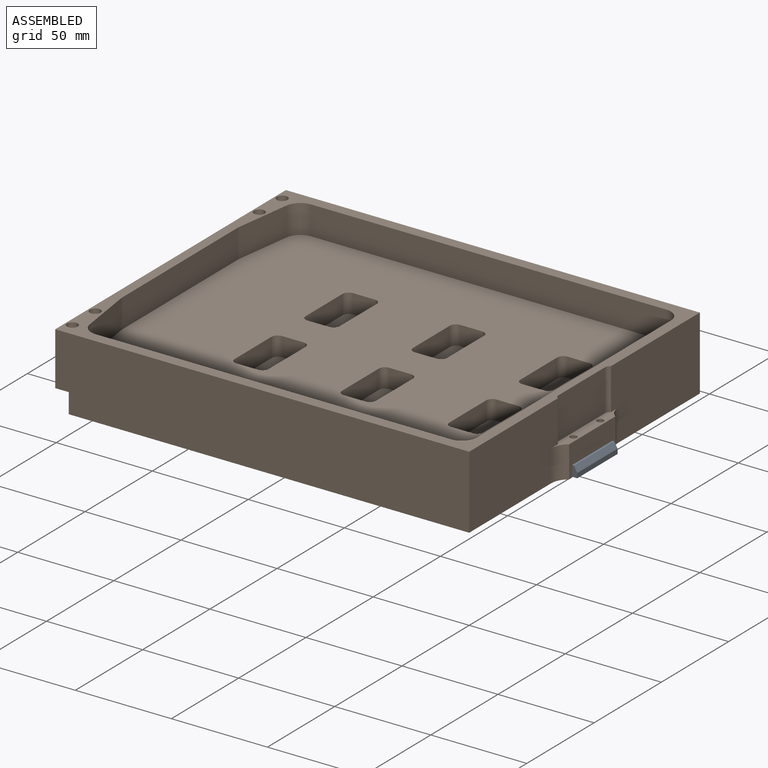
[diagram: assembled view]
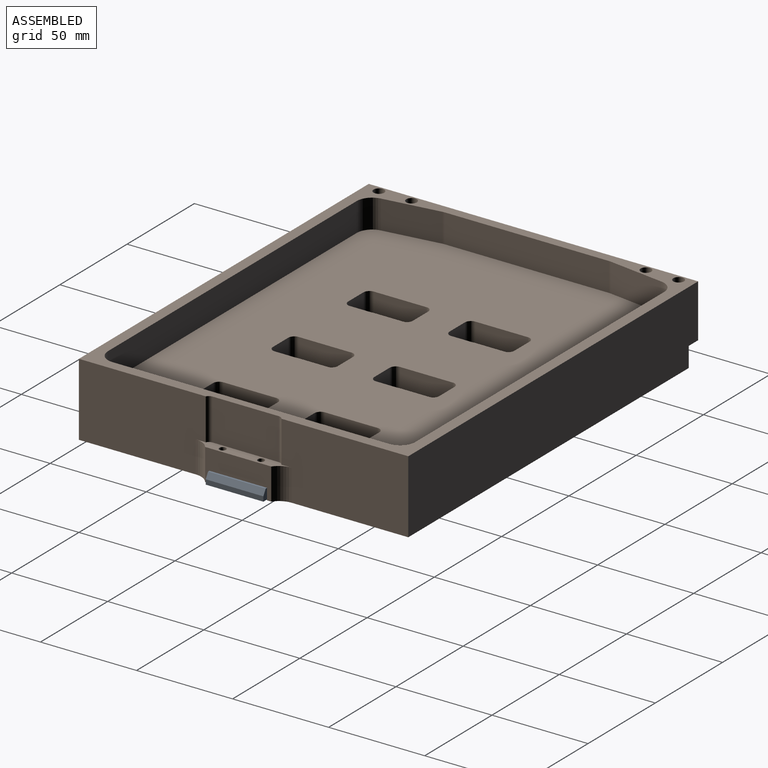
[diagram: assembled view, second angle]
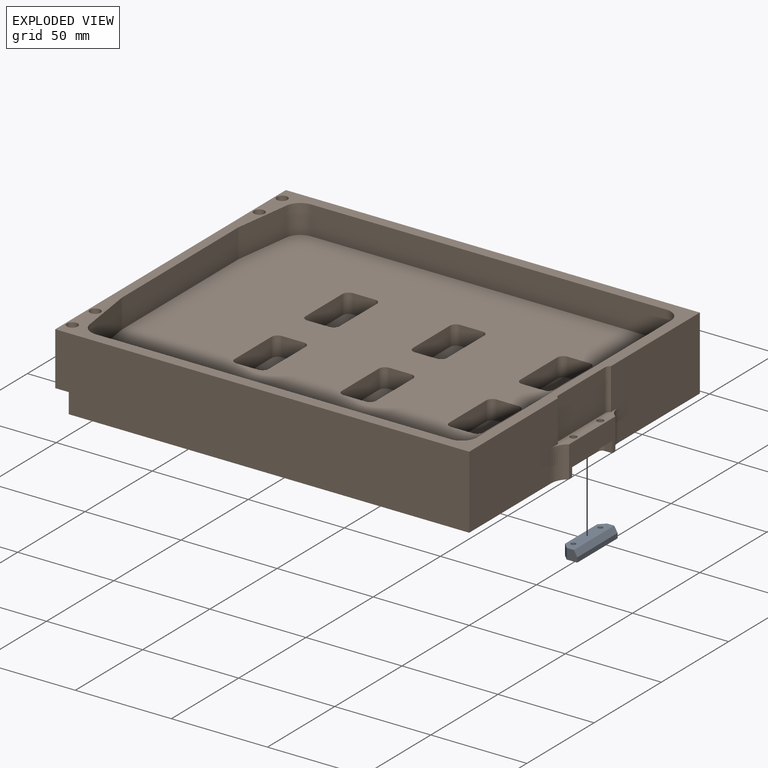
[diagram: exploded view]
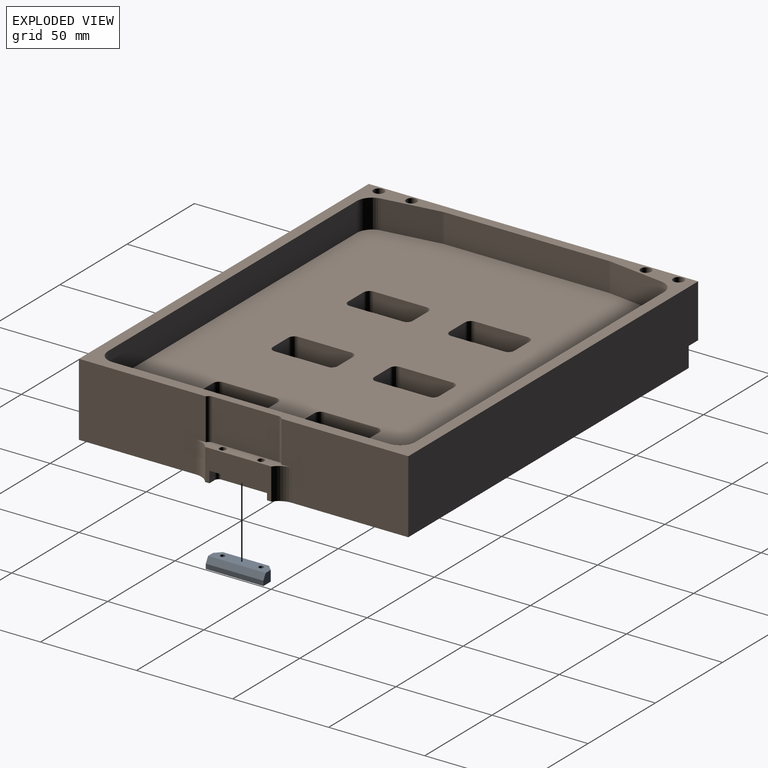
[diagram: exploded view, second angle]
ASSEMBLY  parts=2 mates=2
PART A: 11 faces, bbox 30x8.5x5.5 mm
  f0: plane 5.5x5.5mm, normal (1,0,0), area 27.7mm2, adj f1,f3,f4,f6,f8
  f1: plane 30x6.77mm, normal (0,0,1), area 184.2mm2, adj f0,f2,f5,f6,f7,f8,f9,f10
  f2: plane 5.5x5.5mm, normal (-1,0,0), area 27.7mm2, adj f1,f3,f4,f7,f8
  f3: plane 30x8.5mm, normal (0,0,-1), area 236.2mm2, adj f0,f2,f4,f5,f6,f7,f9,f10
  f4: plane 30x2.5mm, normal (0,-1,0), area 75mm2, adj f0,f2,f3,f8
  f5: plane 24x5.5mm, normal (0,1,0), area 132mm2, adj f1,f3,f6,f7
  f6: plane 5.5x3mm, normal (0.71,0.71,0), area 23.3mm2, adj f0,f1,f3,f5
  f7: plane 5.5x3mm, normal (-0.71,0.71,0), area 23.3mm2, adj f1,f2,f3,f5
  f8: plane 30x3mm, normal (0,-0.87,0.5), area 103.9mm2, adj f0,f1,f2,f4
  f9: cylinder r=1.25mm len=5.5mm, axis (0,0,1), area 43.2mm2, adj f1,f3
  f10: cylinder r=1.25mm len=5.5mm, axis (0,0,1), area 43.2mm2, adj f1,f3
PART B: 127 faces, bbox 219.5x38.1x171.5 mm
  f0: plane 34.42x16.5mm, normal (1,0,0), area 390.9mm2, adj f1,f44,f46,f48,f52,f56,f57
  f1: plane 219.5x171.45mm, normal (0,-1,0), area 4356.5mm2, adj f0,f3,f4,f5,f6,f7,f8,f9
  f2: plane 215.48x171.45mm, normal (0,1,0), area 4226.3mm2, adj f3,f4,f5,f34,f37,f40,f43,f45
  f3: plane 171.45x38.1mm, normal (-1,0,0), area 5801.7mm2, adj f1,f2,f4,f5,f15,f16,f17,f18
  f4: plane 215.48x38.1mm, normal (0,0,1), area 8136.8mm2, adj f1,f2,f3,f24,f25,f47
  f5: plane 215.48x38.1mm, normal (0,0,-1), area 8136.8mm2, adj f1,f2,f3,f21,f22,f45
  f6: plane 153.65x7mm, normal (1,0,0), area 1015.3mm2, adj f1,f10,f13,f14,f15,f16,f17,f18
  f7: plane 193.65x7mm, normal (0,0,-1), area 1355.5mm2, adj f1,f10,f12,f14
  f8: plane 153.65x7mm, normal (-1,0,0), area 1075.5mm2, adj f1,f10,f11,f12
  f9: plane 193.65x7mm, normal (0,0,1), area 1355.5mm2, adj f1,f10,f11,f13
  f10: plane 200x160mm, normal (0,-1,0), area 31991.3mm2, adj f6,f7,f8,f9,f11,f12,f13,f14
  f11: cylinder r=3.17mm len=7mm, axis (0,1,0), area 34.9mm2, adj f1,f8,f9,f10
  f12: cylinder r=3.17mm len=7mm, axis (0,1,0), area 34.9mm2, adj f1,f7,f8,f10
  f13: cylinder r=3.17mm len=7mm, axis (0,1,0), area 34.9mm2, adj f1,f6,f9,f10
  f14: cylinder r=3.17mm len=7mm, axis (0,1,0), area 34.9mm2, adj f1,f6,f7,f10
  f15: plane 10x5.5mm, normal (0,0,-1), area 55mm2, adj f3,f6,f17,f19
  f16: plane 10x5.5mm, normal (0,0,1), area 55mm2, adj f3,f6,f17,f18
  f17: plane 10x10mm, normal (0,-1,0), area 100mm2, adj f3,f6,f15,f16
  f18: plane 10x0.5mm, normal (0,-0.71,0.71), area 7.1mm2, adj f1,f3,f6,f16
  f19: plane 10x0.5mm, normal (0,-0.71,-0.71), area 7.1mm2, adj f1,f3,f6,f15
  f20: plane 10.4x4.74mm, normal (0,0,-1), area 49.3mm2, adj f1,f3,f22,f30
  f21: plane 29.96x10.4mm, normal (-1,0,0), area 311.6mm2, adj f1,f5,f22,f29
  f22: plane 33.83x8.6mm, normal (0,-1,0), area 213.4mm2, adj f3,f5,f20,f21,f29,f30,f31,f32
  f23: plane 10.4x4.74mm, normal (0,0,1), area 49.3mm2, adj f1,f3,f25,f26
  f24: plane 29.96x10.4mm, normal (-1,0,0), area 311.6mm2, adj f1,f4,f25,f27
  f25: plane 33.83x8.6mm, normal (0,-1,0), area 213.4mm2, adj f3,f4,f23,f24,f26,f27,f28,f38
  f26: plane 10.4x1.13mm, normal (0.71,0,0.71), area 16.6mm2, adj f1,f23,f25,f28
  f27: plane 10.4x1.13mm, normal (-0.71,0,-0.71), area 16.6mm2, adj f1,f24,f25,f28
  f28: cylinder r=1.6mm len=10.4mm, axis (0,-1,0), area 52.3mm2, adj f1,f25,f26,f27
  f29: plane 10.4x1.13mm, normal (-0.71,0,0.71), area 16.6mm2, adj f1,f21,f22,f31
  f30: plane 10.4x1.13mm, normal (0.71,0,-0.71), area 16.6mm2, adj f1,f20,f22,f31
  f31: cylinder r=1.6mm len=10.4mm, axis (0,-1,0), area 52.3mm2, adj f1,f22,f29,f30
  f32: cylinder r=1.73mm len=14.95mm, axis (0,1,0), area 162.2mm2, adj f22,f33
  f33: plane 5.56x5.56mm, normal (0,1,0), area 14.9mm2, adj f32,f34
  f34: cylinder r=2.78mm len=12.75mm, axis (0,1,0), area 222.6mm2, adj f2,f33
  f35: cylinder r=1.73mm len=14.95mm, axis (0,1,0), area 162.2mm2, adj f22,f36
  f36: plane 5.56x5.56mm, normal (0,1,0), area 14.9mm2, adj f35,f37
  f37: cylinder r=2.78mm len=12.75mm, axis (0,1,0), area 222.6mm2, adj f2,f36
  f38: cylinder r=1.73mm len=14.95mm, axis (0,1,0), area 162.2mm2, adj f25,f39
  f39: plane 5.56x5.56mm, normal (0,1,0), area 14.9mm2, adj f38,f40
  f40: cylinder r=2.78mm len=12.75mm, axis (0,1,0), area 222.6mm2, adj f2,f39
  f41: cylinder r=1.73mm len=14.95mm, axis (0,1,0), area 162.2mm2, adj f25,f42
  f42: plane 5.56x5.56mm, normal (0,1,0), area 14.9mm2, adj f41,f43
  f43: cylinder r=2.78mm len=12.75mm, axis (0,1,0), area 222.6mm2, adj f2,f42
  f44: cylinder r=9.53mm len=16.5mm, axis (0,1,0), area 150.1mm2, adj f0,f1,f45,f48
  f45: plane 66.04x38.1mm, normal (1,0,0), area 2428.6mm2, adj f1,f2,f5,f44,f48,f49
  f46: cylinder r=9.53mm len=16.5mm, axis (0,1,0), area 150.1mm2, adj f0,f1,f47,f48
  f47: plane 66.04x38.1mm, normal (1,0,0), area 2428.6mm2, adj f1,f2,f4,f46,f48,f50
  f48: plane 49.97x5.5mm, normal (0,1,0), area 194.5mm2, adj f0,f44,f45,f46,f47,f49,f50,f51
  f49: cylinder r=2.75mm len=21.6mm, axis (0,1,0), area 64.7mm2, adj f2,f45,f48,f51
  f50: cylinder r=2.75mm len=21.6mm, axis (0,1,0), area 64.7mm2, adj f2,f47,f48,f51
  f51: plane 34.5x21.6mm, normal (1,0,0), area 745.2mm2, adj f2,f48,f49,f50
  f52: plane 5.9x4mm, normal (0,0,1), area 23.6mm2, adj f0,f1,f53,f57
  f53: cylinder r=2mm len=5.9mm, axis (0,-1,0), area 18.5mm2, adj f1,f52,f54,f57
  f54: plane 26x5.9mm, normal (1,0,0), area 153.4mm2, adj f1,f53,f55,f57
  f55: cylinder r=2mm len=5.9mm, axis (0,-1,0), area 18.5mm2, adj f1,f54,f56,f57
  f56: plane 5.9x4mm, normal (0,0,-1), area 23.6mm2, adj f0,f1,f55,f57
  f57: plane 30x6mm, normal (0,-1,0), area 159.5mm2, adj f0,f52,f53,f54,f55,f56,f58,f59
  f58: cylinder r=1.73mm len=10.6mm, axis (0,-1,0), area 115mm2, adj f48,f57
  f59: cylinder r=1.73mm len=10.6mm, axis (0,-1,0), area 115mm2, adj f48,f57
  f60: plane 144x15mm, normal (-1,0,0), area 2160mm2, adj f2,f66,f69,f72
  f61: plane 184.89x15mm, normal (0,0,-1), area 2773.4mm2, adj f2,f66,f69,f70
  f62: plane 29.23x15mm, normal (0.99,0,-0.14), area 442.7mm2, adj f2,f66,f67,f70
  f63: plane 85.54x15mm, normal (1,0,0), area 1283.1mm2, adj f2,f66,f67,f68
  f64: plane 29.23x15mm, normal (0.99,0,0.14), area 442.7mm2, adj f2,f66,f68,f71
  f65: plane 184.89x15mm, normal (0,0,1), area 2773.4mm2, adj f2,f66,f71,f72
  f66: plane 205x160mm, normal (0,1,0), area 29021.4mm2, adj f60,f61,f62,f63,f64,f65,f67,f68
  f67: cylinder r=8mm len=15mm, axis (0,-1,0), area 16.8mm2, adj f2,f62,f63,f66
  f68: cylinder r=8mm len=15mm, axis (0,-1,0), area 16.8mm2, adj f2,f63,f64,f66
  f69: cylinder r=8mm len=15mm, axis (0,-1,0), area 188.5mm2, adj f2,f60,f61,f66
  f70: cylinder r=8mm len=15mm, axis (0,-1,0), area 171.7mm2, adj f2,f61,f62,f66
  f71: cylinder r=8mm len=15mm, axis (0,-1,0), area 171.7mm2, adj f2,f64,f65,f66
  f72: cylinder r=8mm len=15mm, axis (0,-1,0), area 188.5mm2, adj f2,f60,f65,f66
  f73: cylinder r=3.17mm len=10mm, axis (0,1,0), area 49.9mm2, adj f66,f74,f80,f81
  f74: plane 11.4x10mm, normal (0,0,1), area 114mm2, adj f66,f73,f75,f81
  f75: cylinder r=3.17mm len=10mm, axis (0,1,0), area 49.9mm2, adj f66,f74,f76,f81
  f76: plane 27.4x10mm, normal (-1,0,0), area 274mm2, adj f66,f75,f77,f81
  f77: cylinder r=3.17mm len=10mm, axis (0,1,0), area 49.9mm2, adj f66,f76,f78,f81
  f78: plane 11.4x10mm, normal (0,0,-1), area 114mm2, adj f66,f77,f79,f81
  f79: cylinder r=3.17mm len=10mm, axis (0,1,0), area 49.9mm2, adj f66,f78,f80,f81
  f80: plane 27.4x10mm, normal (1,0,0), area 274mm2, adj f66,f73,f79,f81
  f81: plane 33.75x17.75mm, normal (0,1,0), area 590.4mm2, adj f73,f74,f75,f76,f77,f78,f79,f80
  f82: cylinder r=3.17mm len=10mm, axis (0,1,0), area 49.9mm2, adj f66,f83,f89,f90
  f83: plane 11.4x10mm, normal (0,0,1), area 114mm2, adj f66,f82,f84,f90
  f84: cylinder r=3.17mm len=10mm, axis (0,1,0), area 49.9mm2, adj f66,f83,f85,f90
  f85: plane 27.4x10mm, normal (-1,0,0), area 274mm2, adj f66,f84,f86,f90
  f86: cylinder r=3.17mm len=10mm, axis (0,1,0), area 49.9mm2, adj f66,f85,f87,f90
  f87: plane 11.4x10mm, normal (0,0,-1), area 114mm2, adj f66,f86,f88,f90
  f88: cylinder r=3.17mm len=10mm, axis (0,1,0), area 49.9mm2, adj f66,f87,f89,f90
  f89: plane 27.4x10mm, normal (1,0,0), area 274mm2, adj f66,f82,f88,f90
  f90: plane 33.75x17.75mm, normal (0,1,0), area 590.4mm2, adj f82,f83,f84,f85,f86,f87,f88,f89
  f91: cylinder r=3.17mm len=10mm, axis (0,1,0), area 49.9mm2, adj f66,f92,f98,f99
  f92: plane 11.4x10mm, normal (0,0,1), area 114mm2, adj f66,f91,f93,f99
  f93: cylinder r=3.17mm len=10mm, axis (0,1,0), area 49.9mm2, adj f66,f92,f94,f99
  f94: plane 27.4x10mm, normal (-1,0,0), area 274mm2, adj f66,f93,f95,f99
  f95: cylinder r=3.17mm len=10mm, axis (0,1,0), area 49.9mm2, adj f66,f94,f96,f99
  f96: plane 11.4x10mm, normal (0,0,-1), area 114mm2, adj f66,f95,f97,f99
  f97: cylinder r=3.17mm len=10mm, axis (0,1,0), area 49.9mm2, adj f66,f96,f98,f99
  f98: plane 27.4x10mm, normal (1,0,0), area 274mm2, adj f66,f91,f97,f99
  f99: plane 33.75x17.75mm, normal (0,1,0), area 590.4mm2, adj f91,f92,f93,f94,f95,f96,f97,f98
  f100: plane 33.75x17.75mm, normal (0,1,0), area 590.4mm2, adj f101,f102,f103,f104,f105,f106,f107,f108
  f101: plane 27.4x10mm, normal (1,0,0), area 274mm2, adj f66,f100,f102,f108
  f102: cylinder r=3.17mm len=10mm, axis (0,1,0), area 49.9mm2, adj f66,f100,f101,f103
  f103: plane 11.4x10mm, normal (0,0,-1), area 114mm2, adj f66,f100,f102,f104
  f104: cylinder r=3.17mm len=10mm, axis (0,1,0), area 49.9mm2, adj f66,f100,f103,f105
  f105: plane 27.4x10mm, normal (-1,0,0), area 274mm2, adj f66,f100,f104,f106
  f106: cylinder r=3.17mm len=10mm, axis (0,1,0), area 49.9mm2, adj f66,f100,f105,f107
  f107: plane 11.4x10mm, normal (0,0,1), area 114mm2, adj f66,f100,f106,f108
  f108: cylinder r=3.17mm len=10mm, axis (0,1,0), area 49.9mm2, adj f66,f100,f101,f107
  f109: cylinder r=3.17mm len=10mm, axis (0,1,0), area 49.9mm2, adj f66,f110,f116,f117
  f110: plane 11.4x10mm, normal (0,0,1), area 114mm2, adj f66,f109,f111,f117
  f111: cylinder r=3.17mm len=10mm, axis (0,1,0), area 49.9mm2, adj f66,f110,f112,f117
  f112: plane 27.4x10mm, normal (-1,0,0), area 274mm2, adj f66,f111,f113,f117
  f113: cylinder r=3.17mm len=10mm, axis (0,1,0), area 49.9mm2, adj f66,f112,f114,f117
  f114: plane 11.4x10mm, normal (0,0,-1), area 114mm2, adj f66,f113,f115,f117
  f115: cylinder r=3.17mm len=10mm, axis (0,1,0), area 49.9mm2, adj f66,f114,f116,f117
  f116: plane 27.4x10mm, normal (1,0,0), area 274mm2, adj f66,f109,f115,f117
  f117: plane 33.75x17.75mm, normal (0,1,0), area 590.4mm2, adj f109,f110,f111,f112,f113,f114,f115,f116
  f118: plane 33.75x17.75mm, normal (0,1,0), area 590.4mm2, adj f119,f120,f121,f122,f123,f124,f125,f126
  f119: plane 27.4x10mm, normal (1,0,0), area 274mm2, adj f66,f118,f120,f126
  f120: cylinder r=3.17mm len=10mm, axis (0,1,0), area 49.9mm2, adj f66,f118,f119,f121
  f121: plane 11.4x10mm, normal (0,0,-1), area 114mm2, adj f66,f118,f120,f122
  f122: cylinder r=3.17mm len=10mm, axis (0,1,0), area 49.9mm2, adj f66,f118,f121,f123
  f123: plane 27.4x10mm, normal (-1,0,0), area 274mm2, adj f66,f118,f122,f124
  f124: cylinder r=3.17mm len=10mm, axis (0,1,0), area 49.9mm2, adj f66,f118,f123,f125
  f125: plane 11.4x10mm, normal (0,0,1), area 114mm2, adj f66,f118,f124,f126
  f126: cylinder r=3.17mm len=10mm, axis (0,1,0), area 49.9mm2, adj f66,f118,f119,f125
PLACE A rot(axis=(0,0,1),90deg) t=(-1.77,85.72,3.15)mm
PLACE B rot(axis=(1,0,0),90deg) t=(-105.72,85.72,0)mm fixed
MATE revolute A.f9 <-> B.f58  axis (0,0,1) through (1.22,75.72,5.9)mm
MATE revolute A.f10 <-> B.f59  axis (0,0,1) through (1.22,95.72,5.9)mm
